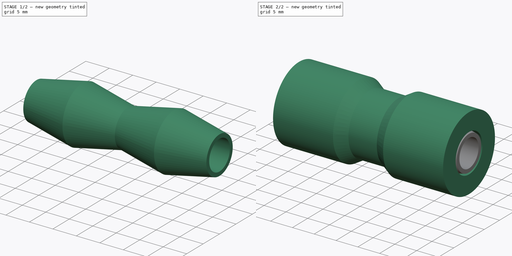
[diagram: build sequence overview — one tinted view per stage of 2, left to right]
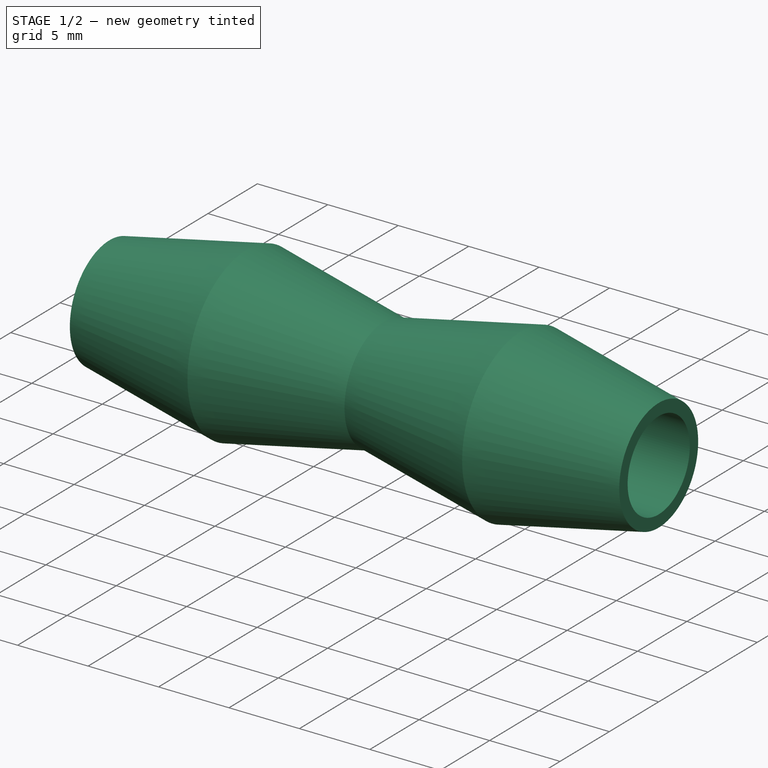
[diagram: stage 1 of 2 — iso view after this stage's code; geometry added in this stage tinted green]
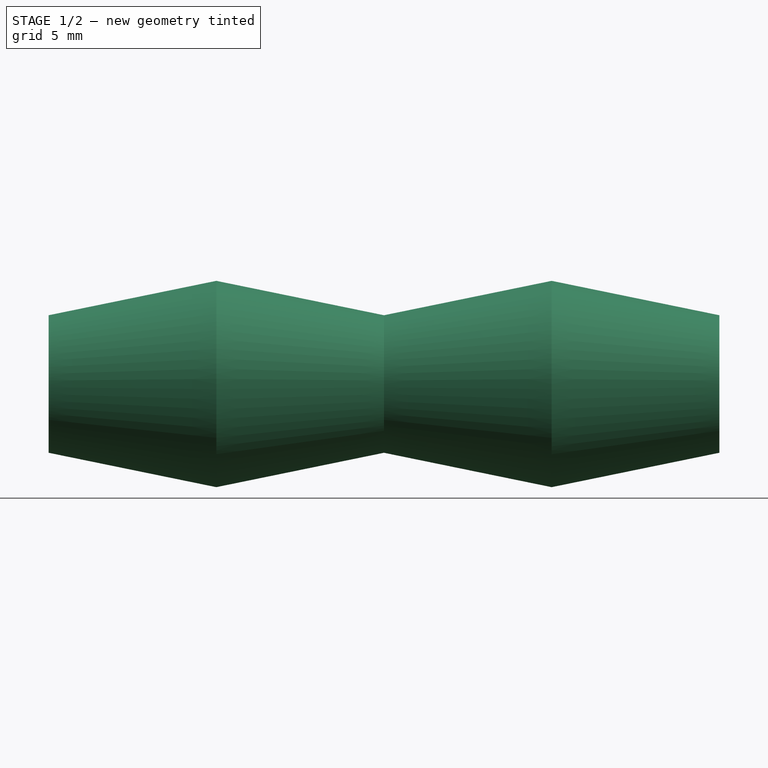
[diagram: stage 1 of 2 — front view after this stage's code; geometry added in this stage tinted green]
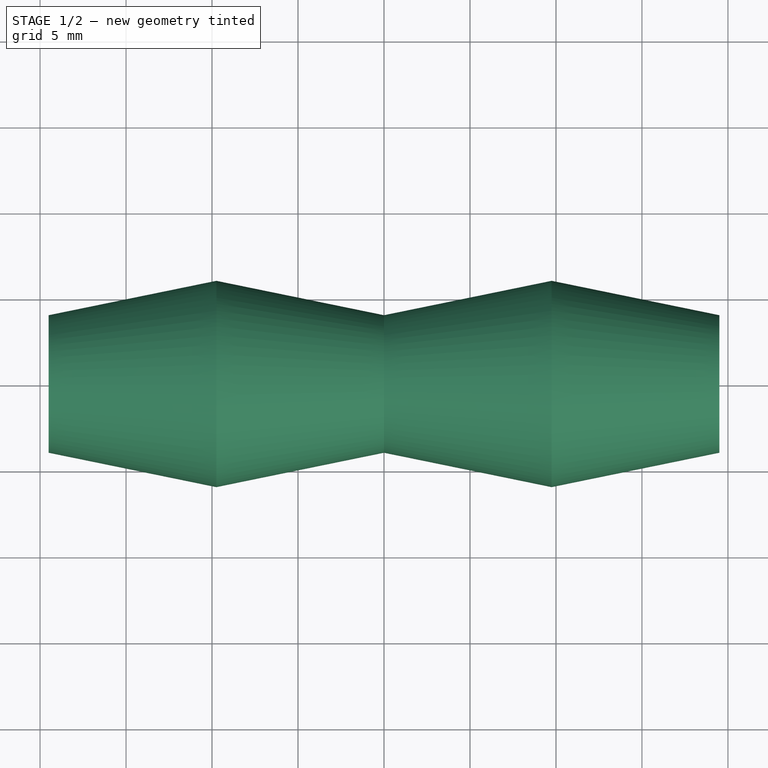
[diagram: stage 1 of 2 — top view after this stage's code; geometry added in this stage tinted green]
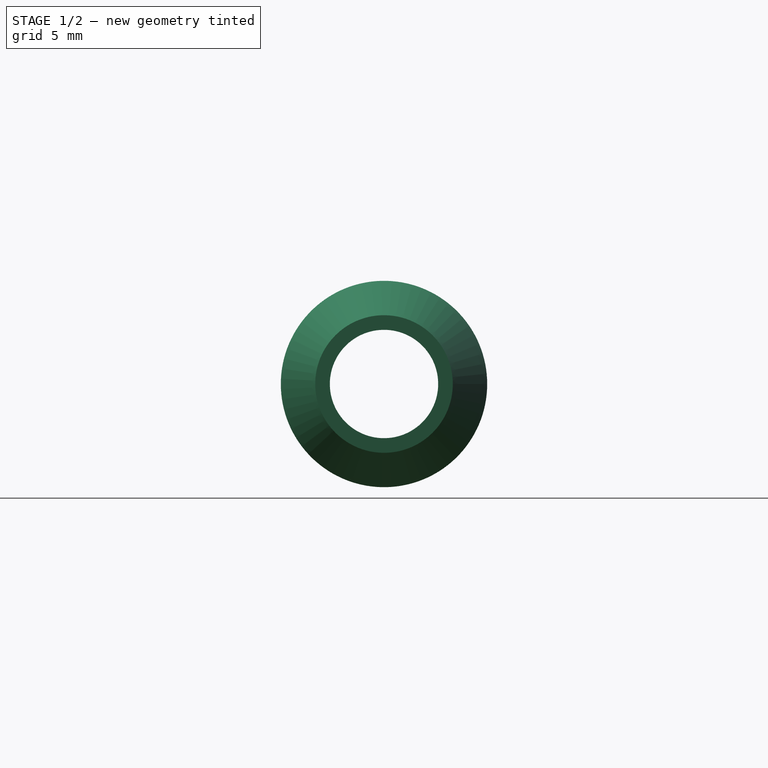
[diagram: stage 1 of 2 — right view after this stage's code; geometry added in this stage tinted green]
FCSTD DOCUMENT  (FreeCAD 0.19R)
Label: y-belt-tensioner-v2
License: All rights reserved
LicenseURL: http://en.wikipedia.org/wiki/All_rights_reserved
objects: Sketcher::SketchObject×3, PartDesign::Revolution×2, PartDesign::Body×2, PartDesign::Pocket×1
note: 11 computed .brp shape members not serialized (recipe doc carries the construction recipe); baked Part::Feature solids carry a one-line shape summary decoded from their .brp

FEATURE [PartDesign::Body] Body001  label="OuterPart"
  Group = -> [Sketch001,Revolution]
  Origin = -> Origin001
  Tip = -> Revolution
FEATURE [PartDesign::Revolution] Revolution001
  Angle = 360
  Axis = (1,0,0)
  Base = (0,0,0)
  Profile = -> Sketch
  ReferenceAxis = -> X_Axis
  Reversed = true
FEATURE [Sketcher::SketchObject] Sketch002
  MapMode = 5
  Placement = pos=(-19.5,0,0) rot=(0.57735,-0.57735,-0.57735;2.0944rad)
  Support = -> [Revolution001]
  sketch-geometry (1):
    g0: Circle CenterX=0 CenterY=0 CenterZ=0 NormalX=0 NormalY=0 NormalZ=1 AngleXU=0 Radius=3.15
  constraints (2):
    c: Coincident(g0,g-1)
    c: Diameter(g0) = 6.3
FEATURE [PartDesign::Pocket] Pocket
  BaseFeature = -> Revolution001
  Length = 40
  Length2 = 100
  Profile = -> Sketch002
  Type = 0
FEATURE [PartDesign::Body] Body  label="InnerPart"
  Group = -> [Sketch,Revolution001,Sketch002,Pocket]
  Origin = -> Origin
  Tip = -> Pocket
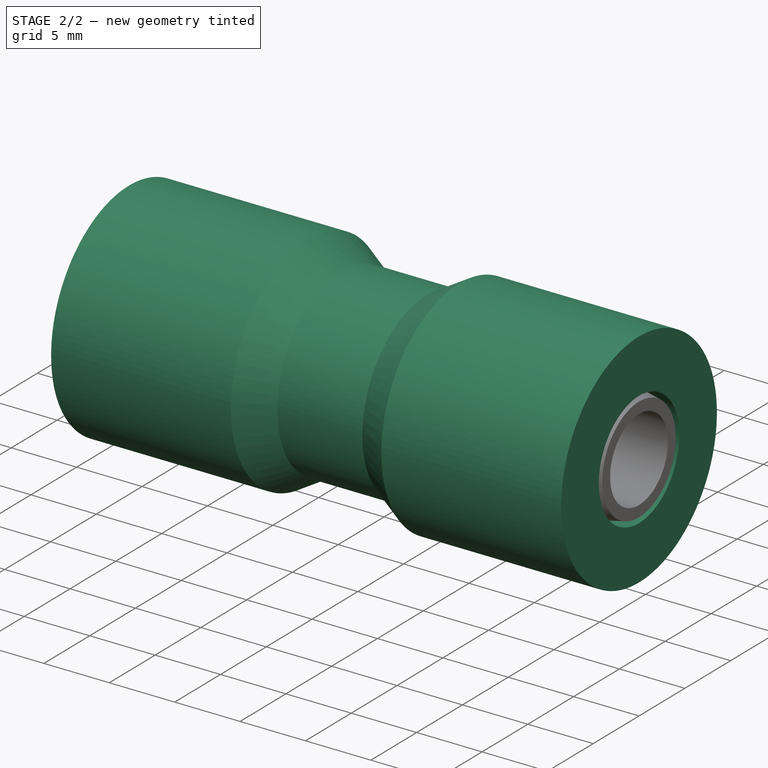
[diagram: stage 2 of 2 — iso view after this stage's code; geometry added in this stage tinted green]
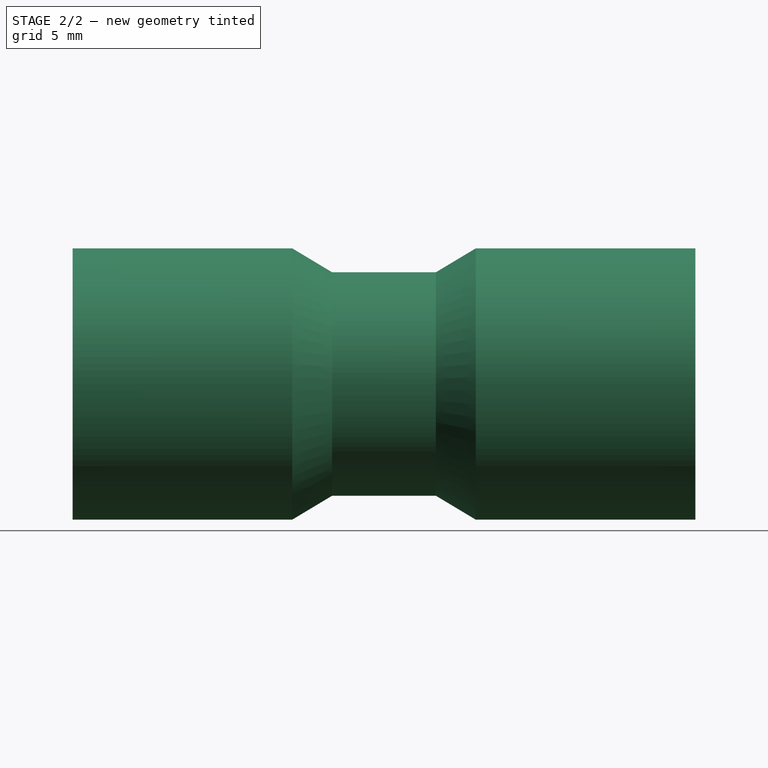
[diagram: stage 2 of 2 — front view after this stage's code; geometry added in this stage tinted green]
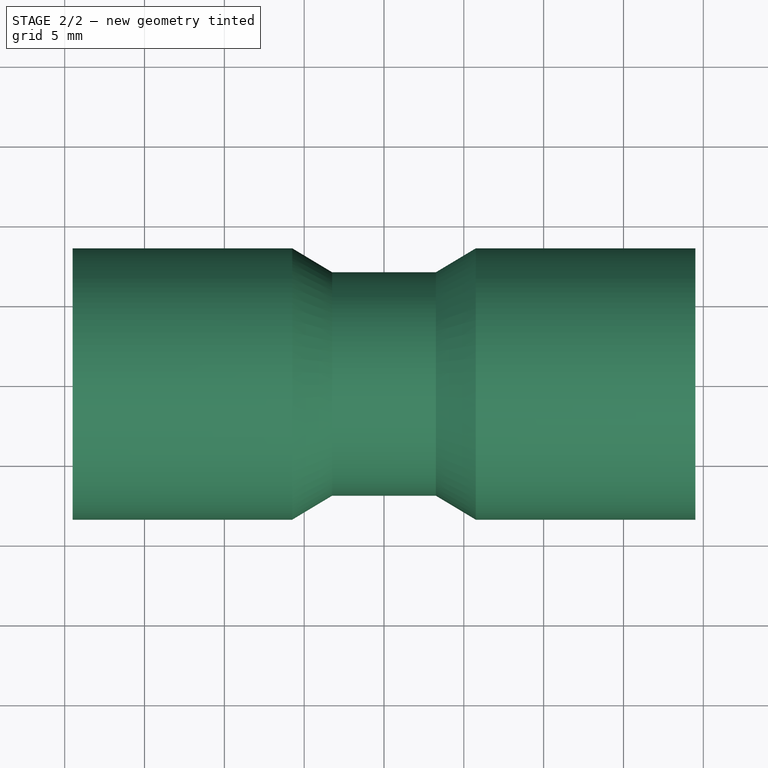
[diagram: stage 2 of 2 — top view after this stage's code; geometry added in this stage tinted green]
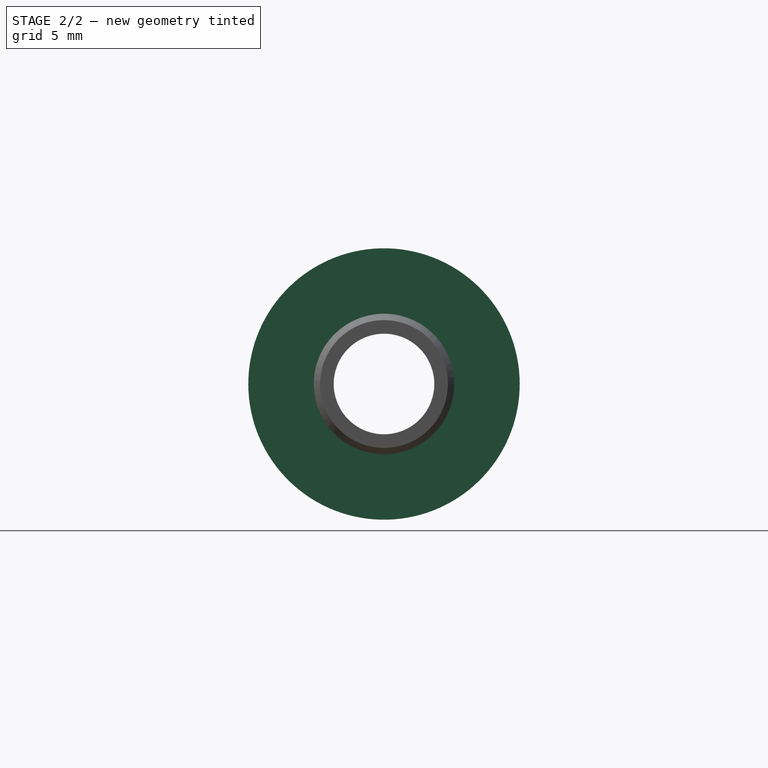
[diagram: stage 2 of 2 — right view after this stage's code; geometry added in this stage tinted green]
FEATURE [Sketcher::SketchObject] Sketch
  MapMode = 5
  Support = -> [XY_Plane]
  sketch-geometry (7):
    g0: LineSegment StartX=-19.5 StartY=0 StartZ=0 EndX=-19.5 EndY=4 EndZ=0
    g1: LineSegment StartX=-19.5 StartY=4 StartZ=0 EndX=-9.75 EndY=6 EndZ=0
    g2: LineSegment StartX=-9.75 StartY=6 StartZ=0 EndX=0 EndY=4 EndZ=0
    g3: LineSegment StartX=0 StartY=4 StartZ=0 EndX=9.75 EndY=6 EndZ=0
    g4: LineSegment StartX=9.75 StartY=6 StartZ=0 EndX=19.5 EndY=4 EndZ=0
    g5: LineSegment StartX=19.5 StartY=4 StartZ=0 EndX=19.5 EndY=0 EndZ=0
    g6: LineSegment StartX=19.5 StartY=0 StartZ=0 EndX=-19.5 EndY=0 EndZ=0
  constraints (21):
    c: PointOnObject(g0,g-1)
    c: Vertical(g0)
    c: Coincident(g0,g1)
    c: Coincident(g1,g2)
    c: PointOnObject(g2,g-2)
    c: Coincident(g2,g3)
    c: Coincident(g3,g4)
    c: Coincident(g4,g5)
    c: PointOnObject(g5,g-1)
    c: Coincident(g5,g6)
    c: Coincident(g6,g0)
    c: Equal(g0,g5)
    c: Vertical(g5)
    c: Equal(g3,g4)
    c: Equal(g4,g2)
    c: Equal(g2,g1)
    c: Parallel(g2,g4)
    c: Parallel(g1,g3)
    c: DistanceY(g0,g0) = 4
    c: DistanceY(g-1,g1) = 6
    c: DistanceX(g6,g6) = 39
FEATURE [Sketcher::SketchObject] Sketch001
  MapMode = 5
  Support = -> [XY_Plane001]
  sketch-geometry (12):
    g0: LineSegment StartX=-19.5 StartY=4.4 StartZ=0 EndX=-19.5 EndY=8.5 EndZ=0
    g1: LineSegment StartX=-19.5 StartY=8.5 StartZ=0 EndX=-5.75 EndY=8.5 EndZ=0
    g2: LineSegment StartX=-5.75 StartY=8.5 StartZ=0 EndX=-3.25 EndY=7 EndZ=0
    g3: LineSegment StartX=-3.25 StartY=7 StartZ=0 EndX=3.25 EndY=7 EndZ=0
    g4: LineSegment StartX=3.25 StartY=7 StartZ=0 EndX=5.75 EndY=8.5 EndZ=0
    g5: LineSegment StartX=5.75 StartY=8.5 StartZ=0 EndX=19.5 EndY=8.5 EndZ=0
    g6: LineSegment StartX=19.5 StartY=8.5 StartZ=0 EndX=19.5 EndY=4.4 EndZ=0
    g7: LineSegment StartX=19.5 StartY=4.4 StartZ=0 EndX=9.75 EndY=6.4 EndZ=0
    g8: LineSegment StartX=9.75 StartY=6.4 StartZ=0 EndX=0 EndY=4.4 EndZ=0
    g9: LineSegment StartX=0 StartY=4.4 StartZ=0 EndX=-9.75 EndY=6.4 EndZ=0
    g10: LineSegment StartX=-9.75 StartY=6.4 StartZ=0 EndX=-19.5 EndY=4.4 EndZ=0
    g11: LineSegment [constr] StartX=-19.5 StartY=4.4 StartZ=0 EndX=19.5 EndY=4.4 EndZ=0
  constraints (35):
    c: Vertical(g0)
    c: Coincident(g0,g1)
    c: Horizontal(g1)
    c: Coincident(g1,g2)
    c: Coincident(g2,g3)
    c: Horizontal(g3)
    c: Coincident(g3,g4)
    c: Coincident(g4,g5)
    c: Horizontal(g5)
    c: Coincident(g5,g6)
    c: Vertical(g6)
    c: Coincident(g6,g7)
    c: Coincident(g7,g8)
    c: PointOnObject(g8,g-2)
    c: Coincident(g8,g9)
    c: Coincident(g9,g10)
    c: Coincident(g10,g0)
    c: Equal(g0,g6)
    c: Equal(g9,g10)
    c: Equal(g10,g8)
    c: Equal(g8,g7)
    c: Parallel(g10,g8)
    c: Parallel(g9,g7)
    c: Equal(g1,g5)
    c: Equal(g2,g4)
    c: DistanceX(g0,g5) = 39
    c: DistanceX(g3,g3) = 6.5
    c: DistanceX(g2,g-1) = 3.25
    c: DistanceY(g-1,g2) = 7
    c: DistanceY(g-1,g1) = 8.5
    c: DistanceX(g1,g2) = 2.5
    c: Coincident(g11,g0)
    c: Coincident(g11,g6)
    c: DistanceY(g-1,g0) = 4.4
    c: DistanceY(g-1,g9) = 6.4
FEATURE [PartDesign::Revolution] Revolution
  Angle = 360
  Axis = (1,0,0)
  Base = (0,0,0)
  Profile = -> Sketch001
  ReferenceAxis = -> X_Axis001
  Reversed = true
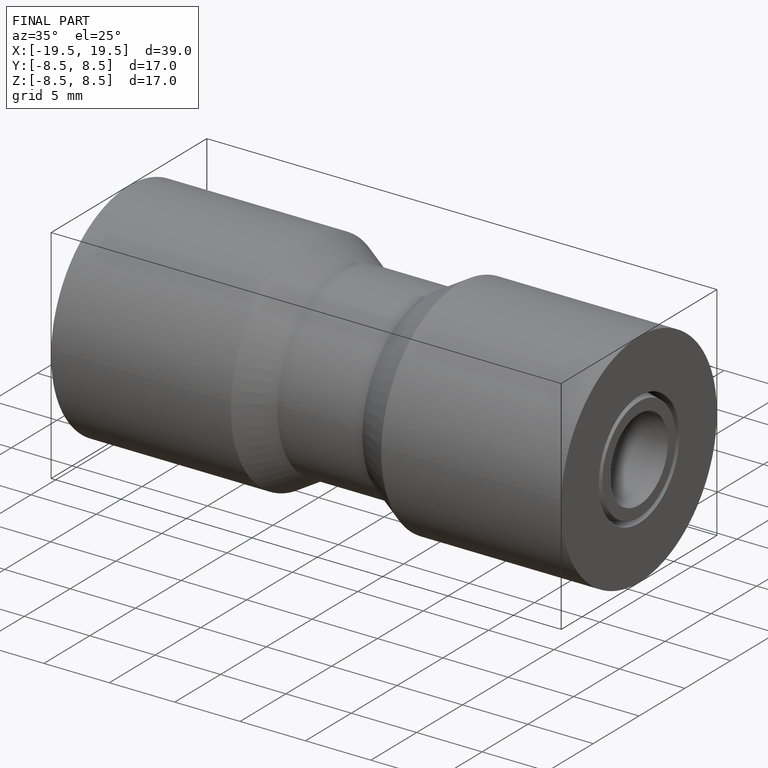
[diagram: finished part — iso view with bounding-box wireframe]
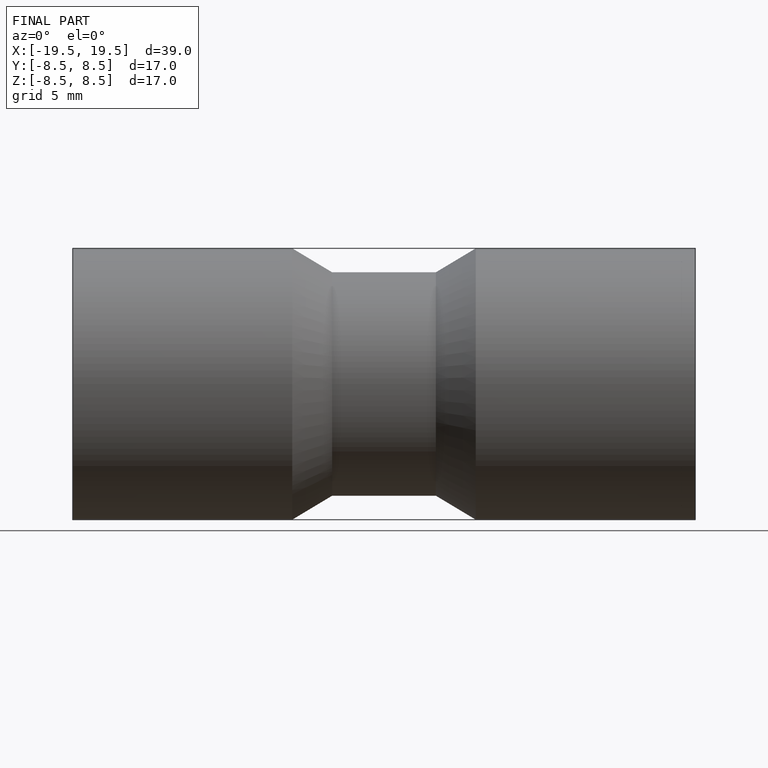
[diagram: finished part — front view with bounding-box wireframe]
